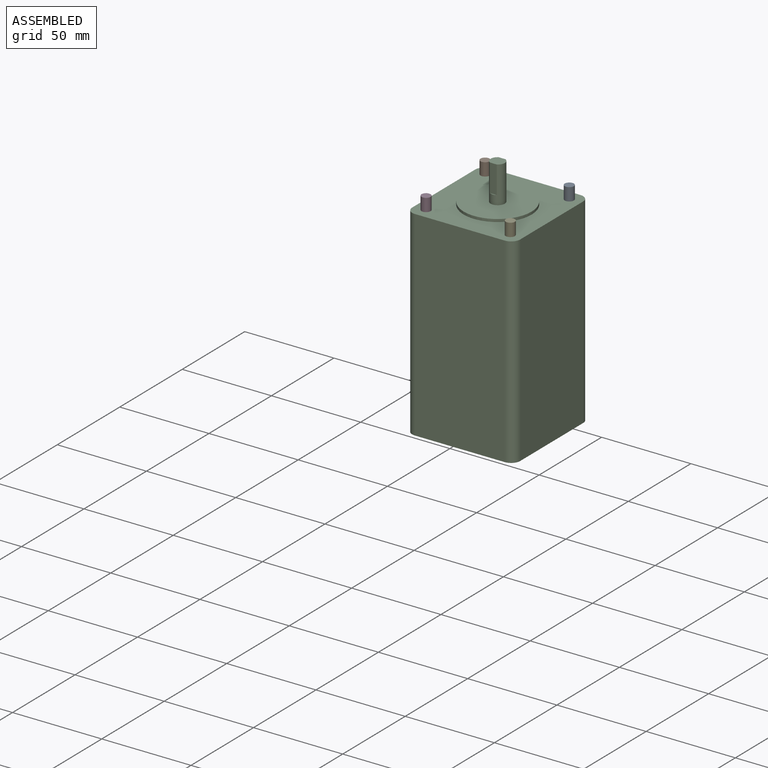
[diagram: assembled view]
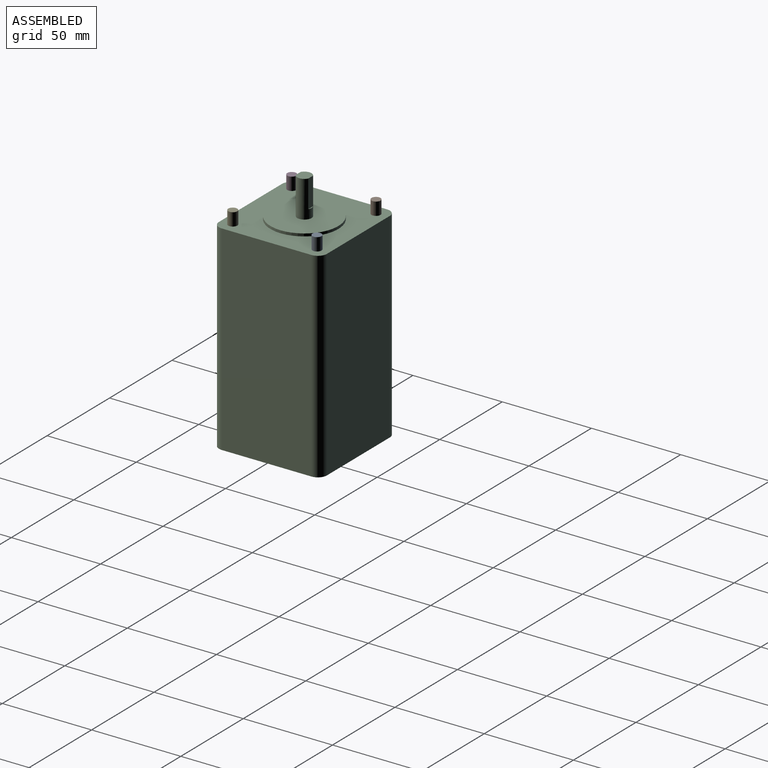
[diagram: assembled view, second angle]
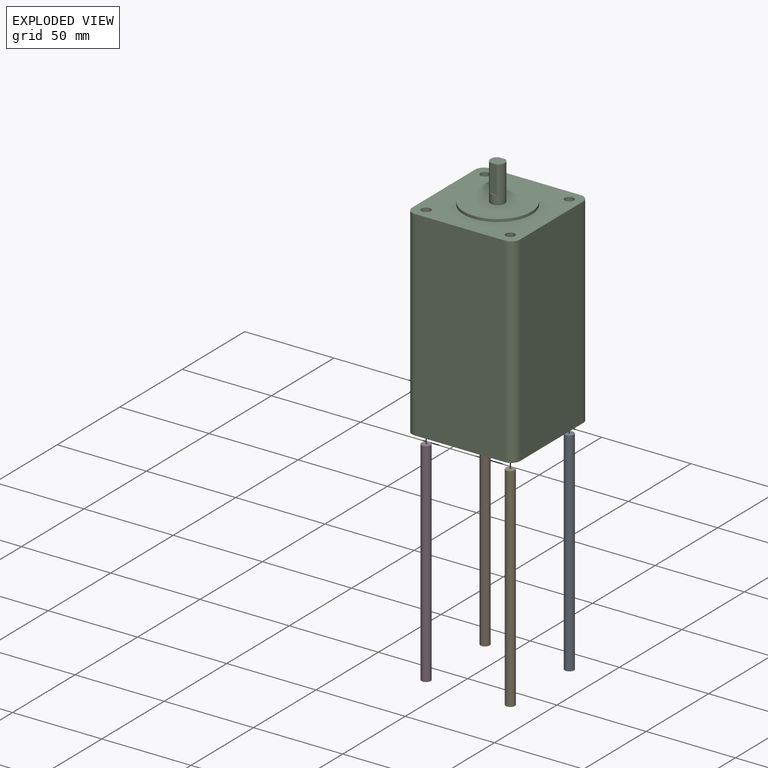
[diagram: exploded view]
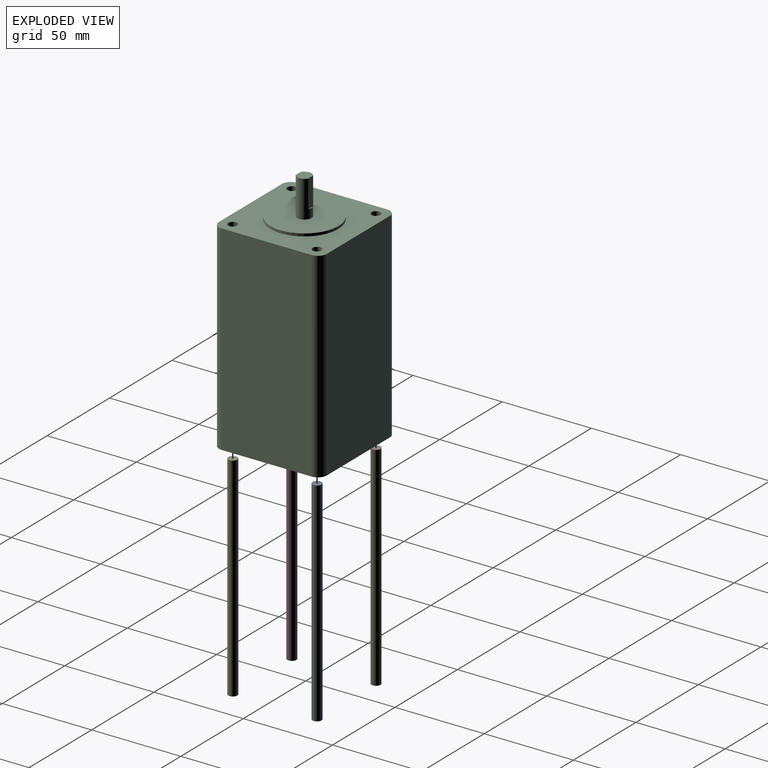
[diagram: exploded view, second angle]
ASSEMBLY  parts=5 mates=4
PART A: 3 faces, bbox 5.1x5.1x119.5 mm
  f0: cylinder r=2.55mm len=119.45mm, axis (0,0,-1), area 1913.8mm2, adj f1,f2
  f1: plane 5.1x5.1mm, normal (0,0,1), area 20.4mm2, adj f0
  f2: plane 5.1x5.1mm, normal (0,0,-1), area 20.4mm2, adj f0
PART B: same geometry as A
PART C: 22 faces, bbox 60.5x60.5x134.3 mm
  f0: plane 112.2x50.34mm, normal (0,1,0), area 5648.1mm2, adj f8,f9,f10,f13
  f1: plane 112.2x50.34mm, normal (-1,0,0), area 5648.1mm2, adj f8,f9,f10,f11
  f2: plane 112.2x50.34mm, normal (0,-1,0), area 5648.1mm2, adj f8,f9,f11,f12
  f3: cylinder r=2.55mm len=112.2mm, axis (0,0,-1), area 1797.7mm2, adj f8,f9
  f4: cylinder r=2.55mm len=112.2mm, axis (0,0,-1), area 1797.7mm2, adj f8,f9
  f5: cylinder r=2.55mm len=112.2mm, axis (0,0,-1), area 1797.7mm2, adj f8,f9
  f6: cylinder r=2.55mm len=112.2mm, axis (0,0,-1), area 1797.7mm2, adj f8,f9
  f7: plane 112.2x50.34mm, normal (1,0,0), area 5648.1mm2, adj f8,f9,f12,f13
  f8: plane 60.5x60.5mm, normal (0,0,1), area 2416.3mm2, adj f0,f1,f2,f3,f4,f5,f6,f7
  f9: plane 60.5x60.5mm, normal (0,0,-1), area 3556.4mm2, adj f0,f1,f2,f3,f4,f5,f6,f7
  f10: cylinder r=5.08mm len=112.2mm, axis (0,0,1), area 895.3mm2, adj f0,f1,f8,f9
  f11: cylinder r=5.08mm len=112.2mm, axis (0,0,-1), area 895.3mm2, adj f1,f2,f8,f9
  f12: cylinder r=5.08mm len=112.2mm, axis (0,0,1), area 895.3mm2, adj f2,f7,f8,f9
  f13: cylinder r=5.08mm len=112.2mm, axis (0,0,-1), area 895.3mm2, adj f0,f7,f8,f9
  f14: cylinder r=19.05mm len=38.1mm, axis (0,0,-1), area 179.5mm2, adj f8,f15
  f15: plane 38.1x38.1mm, normal (0,0,1), area 1089.8mm2, adj f14,f16
  f16: cylinder r=4mm len=20.6mm, axis (0,0,-1), area 392.4mm2, adj f15,f17,f18,f19,f20,f21
  f17: plane 15.5x3.87mm, normal (0,1,0), area 60mm2, adj f16,f19,f20
  f18: plane 15.5x3.87mm, normal (0,-1,0), area 60mm2, adj f16,f19,f21
  f19: plane 8x7mm, normal (0,0,1), area 47.6mm2, adj f16,f17,f18
  f20: plane 3.87x0.5mm, normal (0,0,1), area 1.3mm2, adj f16,f17
  f21: plane 3.87x0.5mm, normal (0,0,1), area 1.3mm2, adj f16,f18
PART D: same geometry as A
PART E: same geometry as A
PLACE A t=(35.24,81.01,-11.51)mm
PLACE B t=(-11.96,81.01,-11.51)mm
PLACE C t=(-18.61,87.66,-11.51)mm
PLACE D t=(-11.96,33.81,-11.51)mm
PLACE E t=(35.24,33.81,-11.51)mm
MATE fastened E.f0 <-> C.f3  axis (0,0,-1) through (35.24,33.81,-11.51)mm
MATE fastened B.f0 <-> C.f5  axis (0,0,-1) through (-11.96,81.01,-11.51)mm
MATE fastened C.f6 <-> D.f0  axis (0,0,-1) through (-11.96,33.81,-11.51)mm
MATE fastened A.f0 <-> C.f4  axis (0,0,-1) through (35.24,81.01,-11.51)mm
